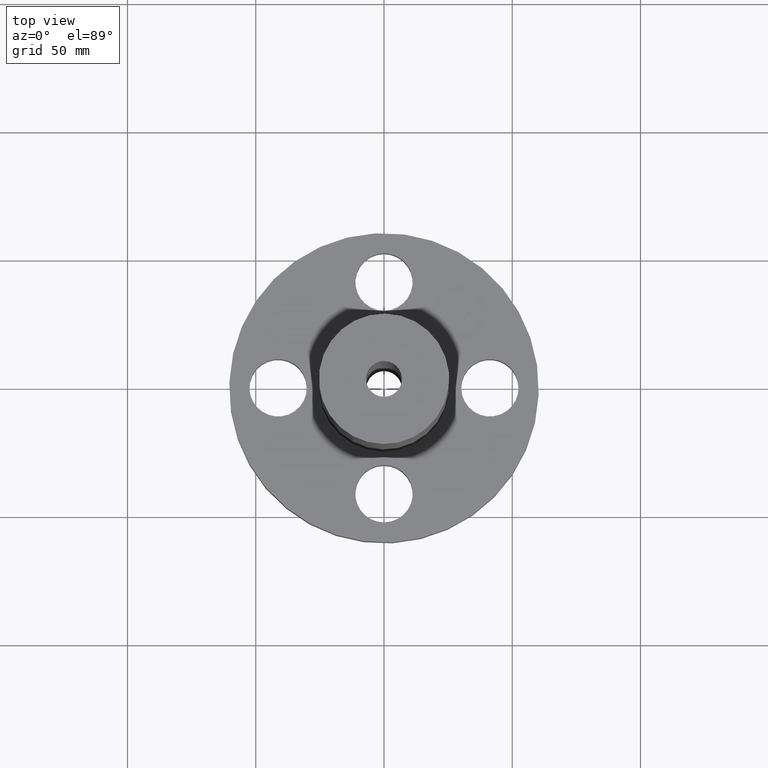
[diagram: clean part render]
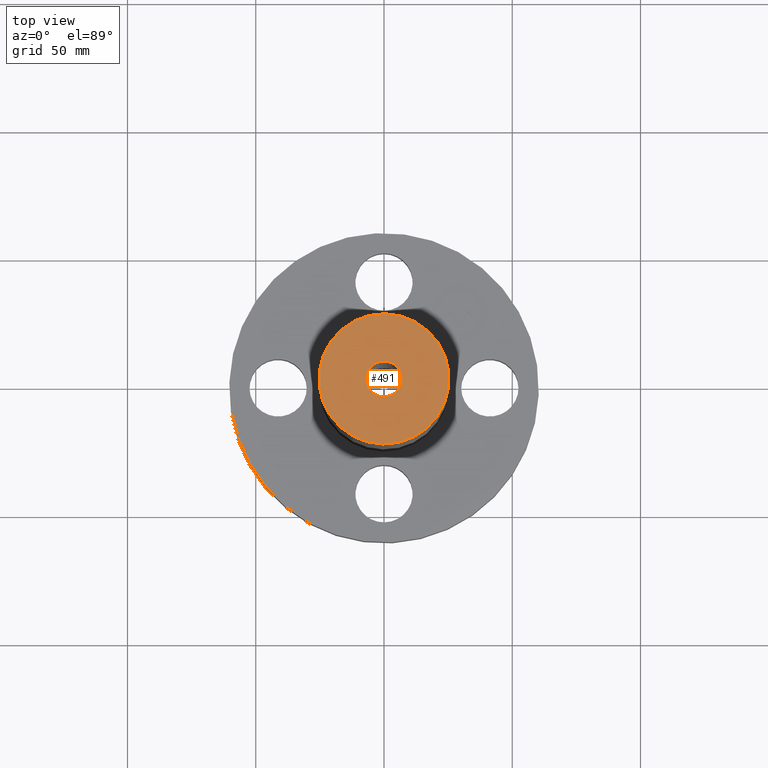
[diagram: same view with one face highlighted and labeled with its STEP entity id]
A machine part, top view. The second image highlights one B-rep face of the part: STEP entity #491.
In plain terms, the highlighted planar face has unit normal (0, 0, -1).
Its self-contained STEP definition (entity closure, byte-faithful):
#435=AXIS2_PLACEMENT_3D('Circle Axis2P3D',#433,#434,$) ;
#454=AXIS2_PLACEMENT_3D('Circle Axis2P3D',#452,#453,$) ;
#467=AXIS2_PLACEMENT_3D('Plane Axis2P3D',#464,#465,#466) ;
#475=AXIS2_PLACEMENT_3D('Circle Axis2P3D',#473,#474,$) ;
#484=AXIS2_PLACEMENT_3D('Circle Axis2P3D',#482,#483,$) ;
#430=CARTESIAN_POINT('Vertex',(0.479425538606,0.877582561894,8.75000000004)) ;
#433=CARTESIAN_POINT('Axis2P3D Location',(0.,0.,8.75000000003)) ;
#437=CARTESIAN_POINT('Vertex',(-0.479425538606,-0.877582561894,8.75000000004)) ;
#452=CARTESIAN_POINT('Axis2P3D Location',(0.,0.,8.75000000003)) ;
#464=CARTESIAN_POINT('Axis2P3D Location',(0.,1.,8.75000000003)) ;
#473=CARTESIAN_POINT('Axis2P3D Location',(0.,0.,8.75000000003)) ;
#477=CARTESIAN_POINT('Vertex',(-0.131842023117,-0.241335204521,8.75000000004)) ;
#479=CARTESIAN_POINT('Vertex',(0.131842023117,0.241335204521,8.75000000004)) ;
#482=CARTESIAN_POINT('Axis2P3D Location',(0.,0.,8.75000000003)) ;
#434=DIRECTION('Axis2P3D Direction',(0.,0.,-0.0393700787402)) ;
#453=DIRECTION('Axis2P3D Direction',(0.,0.,-0.0393700787402)) ;
#465=DIRECTION('Axis2P3D Direction',(0.,0.,-0.0393700787402)) ;
#466=DIRECTION('Axis2P3D XDirection',(0.0393700787402,0.,0.)) ;
#474=DIRECTION('Axis2P3D Direction',(0.,0.,-0.0393700787402)) ;
#483=DIRECTION('Axis2P3D Direction',(0.,0.,-0.0393700787402)) ;
#470=ORIENTED_EDGE('',*,*,#439,.F.) ;
#471=ORIENTED_EDGE('',*,*,#456,.F.) ;
#488=ORIENTED_EDGE('',*,*,#481,.T.) ;
#489=ORIENTED_EDGE('',*,*,#486,.T.) ;
#490=FACE_BOUND('',#487,.T.) ;
#491=ADVANCED_FACE('PartBody',(#472,#490),#468,.F.) ;
#436=CIRCLE('generated circle',#435,1.) ;
#455=CIRCLE('generated circle',#454,1.) ;
#476=CIRCLE('generated circle',#475,0.275000000001) ;
#485=CIRCLE('generated circle',#484,0.275000000001) ;
#439=EDGE_CURVE('',#431,#438,#436,.T.) ;
#456=EDGE_CURVE('',#438,#431,#455,.T.) ;
#481=EDGE_CURVE('',#478,#480,#476,.T.) ;
#486=EDGE_CURVE('',#480,#478,#485,.T.) ;
#469=EDGE_LOOP('',(#470,#471)) ;
#487=EDGE_LOOP('',(#488,#489)) ;
#472=FACE_OUTER_BOUND('',#469,.T.) ;
#468=PLANE('',#467) ;
#431=VERTEX_POINT('',#430) ;
#438=VERTEX_POINT('',#437) ;
#478=VERTEX_POINT('',#477) ;
#480=VERTEX_POINT('',#479) ;